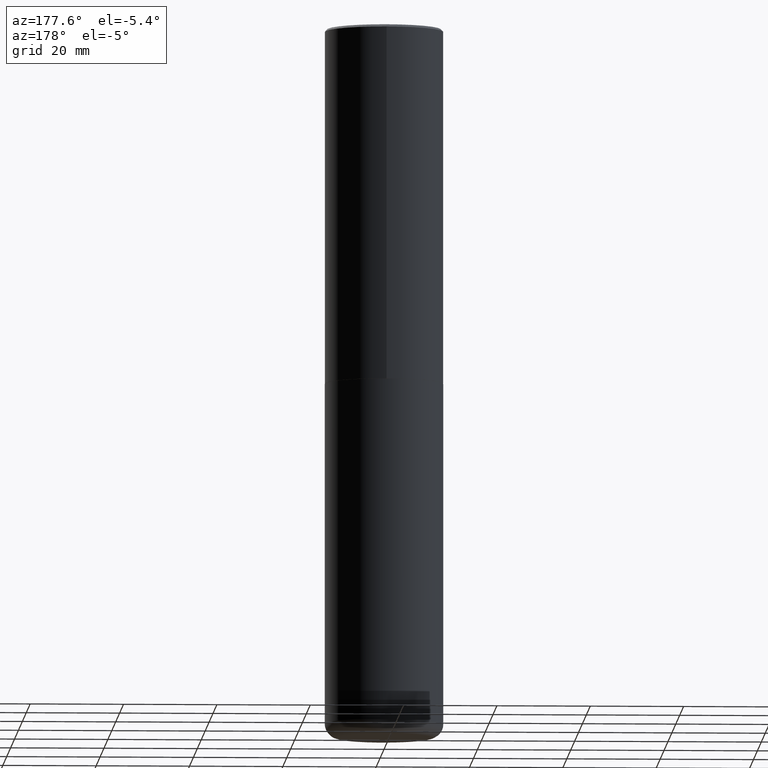
[diagram: clean part render]
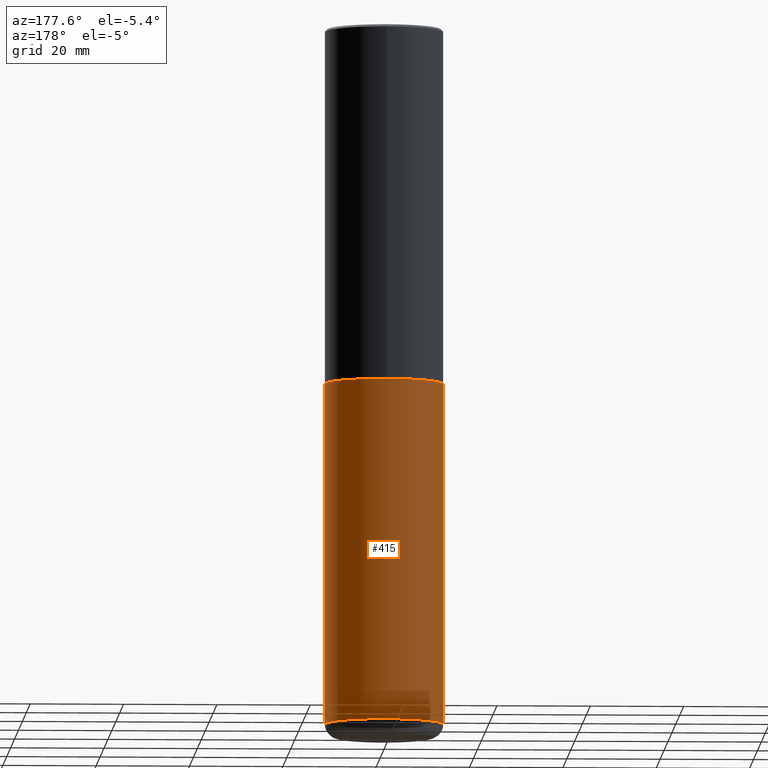
[diagram: same view with one face highlighted and labeled with its STEP entity id]
A machine part, auxiliary view. The second image highlights one B-rep face of the part: STEP entity #415.
In plain terms, the highlighted cylindrical surface (partial cylindrical patch) has radius 12.7 mm, axis along (-0, 0, 1).
Its self-contained STEP definition (entity closure, byte-faithful):
#7 = CARTESIAN_POINT ( 'NONE',  ( 0.000000000000000000, 0.000000000000000000, 0.000000000000000000 ) ) ;
#10 = ORIENTED_EDGE ( 'NONE', *, *, #321, .T. ) ;
#14 = DIRECTION ( 'NONE',  ( -2.445468806185136597E-29, 3.491481338843145583E-15, 1.000000000000000000 ) ) ;
#35 = ORIENTED_EDGE ( 'NONE', *, *, #290, .F. ) ;
#38 = VERTEX_POINT ( 'NONE', #152 ) ;
#48 = CYLINDRICAL_SURFACE ( 'NONE', #66, 0.5000000000000000000 ) ;
#66 = AXIS2_PLACEMENT_3D ( 'NONE', #7, #307, #135 ) ;
#69 = CARTESIAN_POINT ( 'NONE',  ( -0.5000000000000000000, 3.552713678800500929E-15, -2.459467545127452891E-29 ) ) ;
#83 = CARTESIAN_POINT ( 'NONE',  ( 7.336406418555409790E-29, -1.047444401652943635E-14, -3.000000000000000444 ) ) ;
#98 = DIRECTION ( 'NONE',  ( -2.445468806185136877E-29, 3.491481338843145188E-15, 1.000000000000000000 ) ) ;
#107 = VECTOR ( 'NONE', #352, 39.37007874015748143 ) ;
#135 = DIRECTION ( 'NONE',  ( 1.000000000000000000, -6.982962677686266711E-15, 4.876176775795935793E-29 ) ) ;
#140 = CARTESIAN_POINT ( 'NONE',  ( 1.437935658036860328E-28, -2.052991027239769923E-14, -5.880000000000000782 ) ) ;
#148 = DIRECTION ( 'NONE',  ( -2.445468806185136597E-29, 3.491481338843145583E-15, 1.000000000000000000 ) ) ;
#152 = CARTESIAN_POINT ( 'NONE',  ( 0.5000000000000000000, -1.396592535537257129E-14, -3.000000000000000444 ) ) ;
#174 = CARTESIAN_POINT ( 'NONE',  ( -0.5000000000000000000, -1.194946346566306607E-14, -3.000000000000000444 ) ) ;
#176 = EDGE_CURVE ( 'NONE', #38, #355, #278, .T. ) ;
#177 = ORIENTED_EDGE ( 'NONE', *, *, #176, .F. ) ;
#196 = EDGE_LOOP ( 'NONE', ( #336, #10, #177, #35 ) ) ;
#197 = CARTESIAN_POINT ( 'NONE',  ( 0.5000000000000000000, -3.491481338843133355E-15, 2.438088387897967896E-29 ) ) ;
#214 = CIRCLE ( 'NONE', #286, 0.5000000000000001110 ) ;
#225 = LINE ( 'NONE', #69, #107 ) ;
#226 = CARTESIAN_POINT ( 'NONE',  ( -0.5000000000000000000, -1.697719659359719830E-14, -5.880000000000000782 ) ) ;
#231 = VECTOR ( 'NONE', #98, 39.37007874015748143 ) ;
#260 = AXIS2_PLACEMENT_3D ( 'NONE', #83, #148, #376 ) ;
#273 = VERTEX_POINT ( 'NONE', #382 ) ;
#278 = CIRCLE ( 'NONE', #260, 0.5000000000000000000 ) ;
#286 = AXIS2_PLACEMENT_3D ( 'NONE', #140, #14, #338 ) ;
#290 = EDGE_CURVE ( 'NONE', #273, #38, #297, .T. ) ;
#297 = LINE ( 'NONE', #197, #231 ) ;
#307 = DIRECTION ( 'NONE',  ( -2.445468806185136597E-29, 3.491481338843145583E-15, 1.000000000000000000 ) ) ;
#308 = VERTEX_POINT ( 'NONE', #226 ) ;
#321 = EDGE_CURVE ( 'NONE', #308, #355, #225, .T. ) ;
#336 = ORIENTED_EDGE ( 'NONE', *, *, #383, .T. ) ;
#338 = DIRECTION ( 'NONE',  ( 1.000000000000000000, -6.982962677686269077E-15, 0.000000000000000000 ) ) ;
#352 = DIRECTION ( 'NONE',  ( -2.445468806185136877E-29, 3.491481338843145188E-15, 1.000000000000000000 ) ) ;
#355 = VERTEX_POINT ( 'NONE', #174 ) ;
#376 = DIRECTION ( 'NONE',  ( 1.000000000000000000, -6.982962677686266711E-15, 0.000000000000000000 ) ) ;
#382 = CARTESIAN_POINT ( 'NONE',  ( 0.5000000000000000000, -2.402139161124082943E-14, -5.880000000000000782 ) ) ;
#383 = EDGE_CURVE ( 'NONE', #273, #308, #214, .T. ) ;
#395 = FACE_OUTER_BOUND ( 'NONE', #196, .T. ) ;
#415 = ADVANCED_FACE ( 'NONE', ( #395 ), #48, .T. ) ;